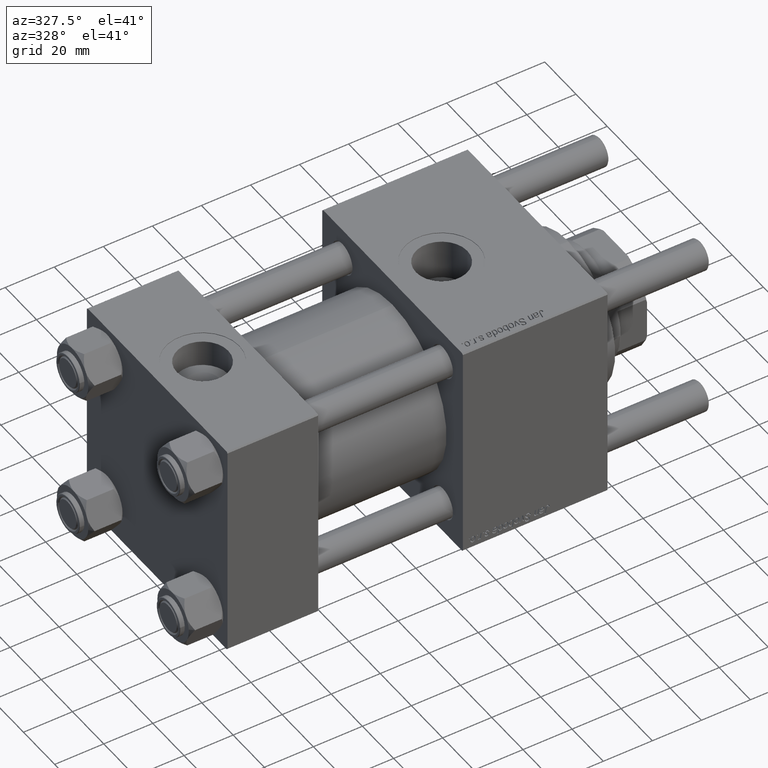
[diagram: clean part render]
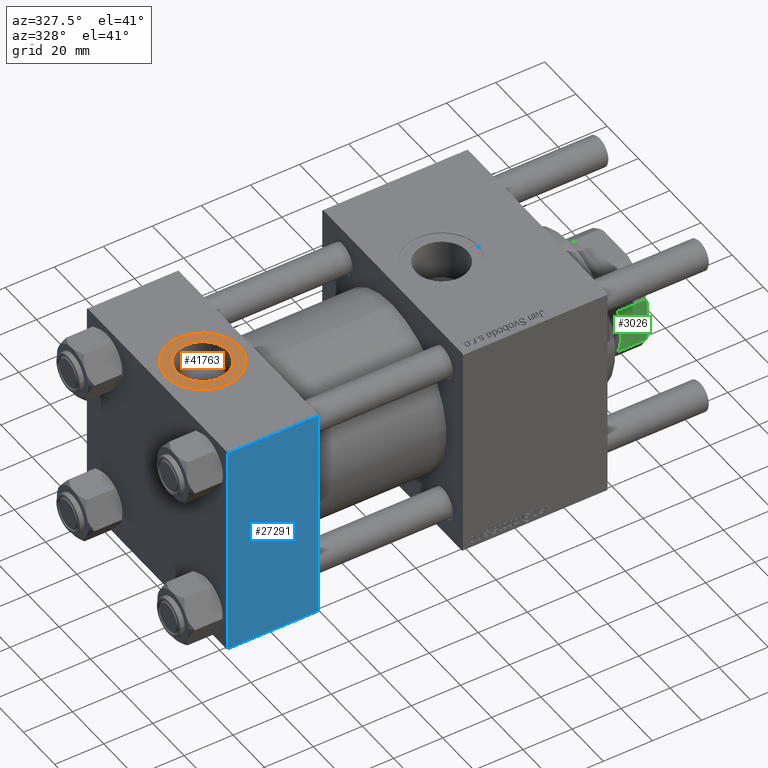
[diagram: same view with three faces highlighted in distinct colors, each labeled with its STEP entity id]
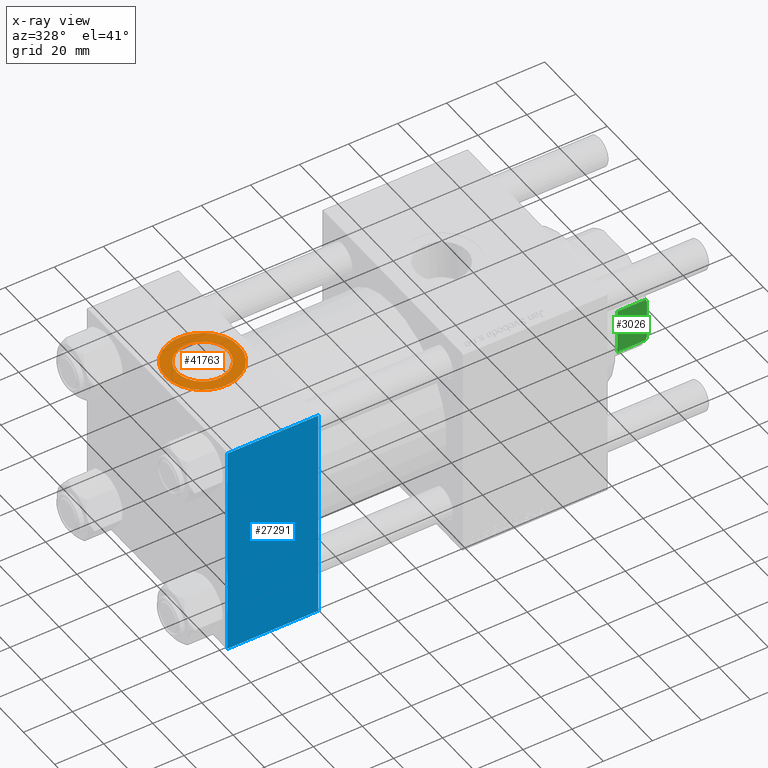
[diagram: x-ray of the same camera — body ghosted, the three highlighted faces saturated]
A machine part, auxiliary view with three faces highlighted in distinct colors.
The next image is the same camera in x-ray (body ghosted, the three faces saturated) — at least one of them is partly hidden behind the body in this view.
Their STEP definitions:

[orange] entity #41763 — the highlighted planar face has unit normal (0, 0, 1).
#342 = ORIENTED_EDGE ( 'NONE', *, *, #10020, .F. ) ;
#1441 = ORIENTED_EDGE ( 'NONE', *, *, #36402, .T. ) ;
#1709 = DIRECTION ( 'NONE',  ( 1.000000000000000000, 0.000000000000000000, 0.000000000000000000 ) ) ;
#1884 = EDGE_LOOP ( 'NONE', ( #1441, #10116 ) ) ;
#4215 = VERTEX_POINT ( 'NONE', #52882 ) ;
#5229 = EDGE_LOOP ( 'NONE', ( #43252, #342 ) ) ;
#6156 = FACE_OUTER_BOUND ( 'NONE', #1884, .T. ) ;
#8341 = CIRCLE ( 'NONE', #44056, 15.00000000000000355 ) ;
#10020 = EDGE_CURVE ( 'NONE', #4215, #42770, #20523, .T. ) ;
#10116 = ORIENTED_EDGE ( 'NONE', *, *, #46093, .T. ) ;
#13223 = DIRECTION ( 'NONE',  ( 1.000000000000000000, 0.000000000000000000, 0.000000000000000000 ) ) ;
#13505 = VERTEX_POINT ( 'NONE', #47375 ) ;
#13994 = AXIS2_PLACEMENT_3D ( 'NONE', #20961, #17518, #13223 ) ;
#15042 = CARTESIAN_POINT ( 'NONE',  ( 18.50000000000000000, -8.673617379884038628E-15, 44.80000000000000426 ) ) ;
#17518 = DIRECTION ( 'NONE',  ( 0.000000000000000000, 0.000000000000000000, 1.000000000000000000 ) ) ;
#19461 = CARTESIAN_POINT ( 'NONE',  ( 18.50000000000000000, -8.673617379884038628E-15, 44.80000000000000426 ) ) ;
#20523 = CIRCLE ( 'NONE', #27871, 10.48000000000000043 ) ;
#20961 = CARTESIAN_POINT ( 'NONE',  ( 18.50000000000000000, -8.673617379884038628E-15, 44.80000000000000426 ) ) ;
#21096 = CARTESIAN_POINT ( 'NONE',  ( 28.98000000000000043, -8.673617379884038628E-15, 44.80000000000000426 ) ) ;
#25695 = CARTESIAN_POINT ( 'NONE',  ( 18.50000000000000000, -8.673617379884038628E-15, 44.80000000000000426 ) ) ;
#27871 = AXIS2_PLACEMENT_3D ( 'NONE', #19461, #36951, #1709 ) ;
#28895 = CARTESIAN_POINT ( 'NONE',  ( 18.50000000000000000, -8.673617379884038628E-15, 44.80000000000000426 ) ) ;
#29916 = DIRECTION ( 'NONE',  ( 0.000000000000000000, 0.000000000000000000, 1.000000000000000000 ) ) ;
#34867 = DIRECTION ( 'NONE',  ( 0.000000000000000000, 0.000000000000000000, 1.000000000000000000 ) ) ;
#36402 = EDGE_CURVE ( 'NONE', #39110, #13505, #8341, .T. ) ;
#36951 = DIRECTION ( 'NONE',  ( 0.000000000000000000, 0.000000000000000000, 1.000000000000000000 ) ) ;
#37739 = CIRCLE ( 'NONE', #13994, 15.00000000000000355 ) ;
#38354 = DIRECTION ( 'NONE',  ( 1.000000000000000000, 0.000000000000000000, 0.000000000000000000 ) ) ;
#39110 = VERTEX_POINT ( 'NONE', #46484 ) ;
#41763 = ADVANCED_FACE ( 'NONE', ( #45416, #6156 ), #54291, .T. ) ;
#42649 = DIRECTION ( 'NONE',  ( 0.000000000000000000, 0.000000000000000000, 1.000000000000000000 ) ) ;
#42770 = VERTEX_POINT ( 'NONE', #21096 ) ;
#43252 = ORIENTED_EDGE ( 'NONE', *, *, #47688, .F. ) ;
#43283 = CIRCLE ( 'NONE', #56105, 10.48000000000000043 ) ;
#44056 = AXIS2_PLACEMENT_3D ( 'NONE', #25695, #34867, #52911 ) ;
#45082 = AXIS2_PLACEMENT_3D ( 'NONE', #15042, #29916, #51114 ) ;
#45416 = FACE_BOUND ( 'NONE', #5229, .T. ) ;
#46093 = EDGE_CURVE ( 'NONE', #13505, #39110, #37739, .T. ) ;
#46484 = CARTESIAN_POINT ( 'NONE',  ( 33.50000000000000000, -8.673617379884038628E-15, 44.80000000000000426 ) ) ;
#47375 = CARTESIAN_POINT ( 'NONE',  ( 3.499999999999997780, -6.836647181163008250E-15, 44.80000000000000426 ) ) ;
#47688 = EDGE_CURVE ( 'NONE', #42770, #4215, #43283, .T. ) ;
#51114 = DIRECTION ( 'NONE',  ( 1.000000000000000000, 0.000000000000000000, -0.000000000000000000 ) ) ;
#52882 = CARTESIAN_POINT ( 'NONE',  ( 8.019999999999999574, -7.390187534377611561E-15, 44.80000000000000426 ) ) ;
#52911 = DIRECTION ( 'NONE',  ( 1.000000000000000000, 0.000000000000000000, 0.000000000000000000 ) ) ;
#54291 = PLANE ( 'NONE',  #45082 ) ;
#56105 = AXIS2_PLACEMENT_3D ( 'NONE', #28895, #42649, #38354 ) ;

[blue] entity #27291 — the highlighted planar face has unit normal (0, 1, 0).
#65 = CARTESIAN_POINT ( 'NONE',  ( 0.000000000000000000, -45.00000000000000000, -44.49999999999995737 ) ) ;
#977 = ORIENTED_EDGE ( 'NONE', *, *, #52390, .T. ) ;
#1969 = LINE ( 'NONE', #28332, #23312 ) ;
#5028 = VECTOR ( 'NONE', #30031, 1000.000000000000000 ) ;
#6844 = LINE ( 'NONE', #29473, #45933 ) ;
#7181 = FACE_OUTER_BOUND ( 'NONE', #15601, .T. ) ;
#8285 = VERTEX_POINT ( 'NONE', #12731 ) ;
#9289 = VERTEX_POINT ( 'NONE', #65 ) ;
#10574 = DIRECTION ( 'NONE',  ( 0.000000000000000000, 7.709882115452476934E-17, -1.000000000000000000 ) ) ;
#10939 = CARTESIAN_POINT ( 'NONE',  ( 37.00000000000000000, -45.00000000000000000, -44.49999999999995737 ) ) ;
#12731 = CARTESIAN_POINT ( 'NONE',  ( 0.000000000000000000, -45.00000000000000711, 44.49999999999997158 ) ) ;
#14456 = DIRECTION ( 'NONE',  ( -1.000000000000000000, 0.000000000000000000, 0.000000000000000000 ) ) ;
#14728 = LINE ( 'NONE', #53696, #19949 ) ;
#15601 = EDGE_LOOP ( 'NONE', ( #977, #18096, #37842, #31303 ) ) ;
#18096 = ORIENTED_EDGE ( 'NONE', *, *, #43983, .T. ) ;
#19808 = DIRECTION ( 'NONE',  ( 0.000000000000000000, -7.709882115452478166E-17, 1.000000000000000000 ) ) ;
#19949 = VECTOR ( 'NONE', #14456, 1000.000000000000000 ) ;
#20365 = CARTESIAN_POINT ( 'NONE',  ( 37.00000000000000000, -45.00000000000000711, 45.00000000000000000 ) ) ;
#23312 = VECTOR ( 'NONE', #10574, 1000.000000000000000 ) ;
#24323 = DIRECTION ( 'NONE',  ( 1.000000000000000000, 0.000000000000000000, 0.000000000000000000 ) ) ;
#25723 = EDGE_CURVE ( 'NONE', #37937, #8285, #14728, .T. ) ;
#27291 = ADVANCED_FACE ( 'NONE', ( #7181 ), #54765, .F. ) ;
#28332 = CARTESIAN_POINT ( 'NONE',  ( 0.000000000000000000, -45.00000000000000711, 45.00000000000000000 ) ) ;
#29473 = CARTESIAN_POINT ( 'NONE',  ( 37.00000000000000000, -45.00000000000000000, -44.49999999999998579 ) ) ;
#30031 = DIRECTION ( 'NONE',  ( 0.000000000000000000, 7.709882115452476934E-17, -1.000000000000000000 ) ) ;
#31303 = ORIENTED_EDGE ( 'NONE', *, *, #25723, .T. ) ;
#33549 = DIRECTION ( 'NONE',  ( -0.000000000000000000, 1.000000000000000000, 7.709882115452478166E-17 ) ) ;
#34639 = AXIS2_PLACEMENT_3D ( 'NONE', #20365, #33549, #19808 ) ;
#36355 = VERTEX_POINT ( 'NONE', #10939 ) ;
#37842 = ORIENTED_EDGE ( 'NONE', *, *, #53358, .F. ) ;
#37937 = VERTEX_POINT ( 'NONE', #42785 ) ;
#42785 = CARTESIAN_POINT ( 'NONE',  ( 37.00000000000000000, -45.00000000000000711, 44.49999999999997158 ) ) ;
#43983 = EDGE_CURVE ( 'NONE', #9289, #36355, #6844, .T. ) ;
#45933 = VECTOR ( 'NONE', #24323, 1000.000000000000000 ) ;
#47227 = CARTESIAN_POINT ( 'NONE',  ( 37.00000000000000000, -45.00000000000000711, 45.00000000000000000 ) ) ;
#51227 = LINE ( 'NONE', #47227, #5028 ) ;
#52390 = EDGE_CURVE ( 'NONE', #8285, #9289, #1969, .T. ) ;
#53358 = EDGE_CURVE ( 'NONE', #37937, #36355, #51227, .T. ) ;
#53696 = CARTESIAN_POINT ( 'NONE',  ( 37.00000000000000000, -45.00000000000000711, 44.49999999999997158 ) ) ;
#54765 = PLANE ( 'NONE',  #34639 ) ;

[green] entity #3026 — the highlighted planar face has unit normal (0, 1, 0).
#3026 = ADVANCED_FACE ( 'NONE', ( #24942 ), #54769, .F. ) ;
#3088 = VERTEX_POINT ( 'NONE', #43577 ) ;
#3627 = EDGE_LOOP ( 'NONE', ( #26200, #17372, #49762, #40819, #42470, #42910 ) ) ;
#5920 = VECTOR ( 'NONE', #9876, 1000.000000000000000 ) ;
#7573 = CARTESIAN_POINT ( 'NONE',  ( 19.99999999999999289, -9.165151389911693869, 149.5000000000000000 ) ) ;
#7770 = B_SPLINE_CURVE_WITH_KNOTS ( 'NONE', 3,
 ( #36795, #48363, #49974, #23890 ),
 .UNSPECIFIED., .F., .F.,
 ( 4, 4 ),
 ( 1.734723475976807094E-18, 0.001369799431184337470 ),
 .UNSPECIFIED. ) ;
#8435 = AXIS2_PLACEMENT_3D ( 'NONE', #55889, #51591, #51031 ) ;
#9876 = DIRECTION ( 'NONE',  ( -1.734723475976807094E-16, 1.000000000000000000, -0.000000000000000000 ) ) ;
#12095 = CARTESIAN_POINT ( 'NONE',  ( 19.99999999999999645, 9.165151389911683211, -0.001000000000001000089 ) ) ;
#14870 = EDGE_CURVE ( 'NONE', #18285, #29492, #32373, .T. ) ;
#16038 = CARTESIAN_POINT ( 'NONE',  ( 20.00000000000000000, 7.889866919029812742, 150.0000000000000284 ) ) ;
#17322 = CARTESIAN_POINT ( 'NONE',  ( 19.99999999999999645, 9.165151389911683211, 149.5000000000000568 ) ) ;
#17372 = ORIENTED_EDGE ( 'NONE', *, *, #24619, .T. ) ;
#17527 = EDGE_CURVE ( 'NONE', #37174, #3088, #51633, .T. ) ;
#18285 = VERTEX_POINT ( 'NONE', #47806 ) ;
#19736 = CARTESIAN_POINT ( 'NONE',  ( 19.99999999999999289, -9.165151389911693869, -0.001000000000001000089 ) ) ;
#20014 = DIRECTION ( 'NONE',  ( -0.000000000000000000, -0.000000000000000000, 1.000000000000000000 ) ) ;
#21212 = B_SPLINE_CURVE_WITH_KNOTS ( 'NONE', 3,
 ( #17322, #34798, #48274, #34230 ),
 .UNSPECIFIED., .F., .F.,
 ( 4, 4 ),
 ( 0.000000000000000000, 0.001369799431184152939 ),
 .UNSPECIFIED. ) ;
#23436 = VECTOR ( 'NONE', #20014, 1000.000000000000000 ) ;
#23890 = CARTESIAN_POINT ( 'NONE',  ( 19.99999999999999289, -9.165151389911693869, 149.5000000000000000 ) ) ;
#24411 = VECTOR ( 'NONE', #30723, 1000.000000000000000 ) ;
#24619 = EDGE_CURVE ( 'NONE', #3088, #55393, #21212, .T. ) ;
#24942 = FACE_OUTER_BOUND ( 'NONE', #3627, .T. ) ;
#26200 = ORIENTED_EDGE ( 'NONE', *, *, #17527, .T. ) ;
#26945 = LINE ( 'NONE', #40137, #42254 ) ;
#28254 = VERTEX_POINT ( 'NONE', #37088 ) ;
#29492 = VERTEX_POINT ( 'NONE', #7573 ) ;
#30374 = CARTESIAN_POINT ( 'NONE',  ( 19.99999999999999645, 9.165151389911683211, 138.0000000000000568 ) ) ;
#30723 = DIRECTION ( 'NONE',  ( -0.000000000000000000, -0.000000000000000000, 1.000000000000000000 ) ) ;
#31656 = CARTESIAN_POINT ( 'NONE',  ( 19.99999999999999645, 20.00000000000000000, 138.0000000000000000 ) ) ;
#32373 = LINE ( 'NONE', #19736, #23436 ) ;
#33932 = EDGE_CURVE ( 'NONE', #28254, #55393, #26945, .T. ) ;
#34230 = CARTESIAN_POINT ( 'NONE',  ( 20.00000000000000000, 7.889866919029812742, 150.0000000000000284 ) ) ;
#34798 = CARTESIAN_POINT ( 'NONE',  ( 19.99999999999999645, 8.743570658524381756, 149.6756296011925258 ) ) ;
#36113 = DIRECTION ( 'NONE',  ( -1.734723475976807094E-16, 1.000000000000000000, -0.000000000000000000 ) ) ;
#36236 = LINE ( 'NONE', #31656, #5920 ) ;
#36795 = CARTESIAN_POINT ( 'NONE',  ( 20.00000000000000000, -7.889866919029643100, 150.0000000000000284 ) ) ;
#37088 = CARTESIAN_POINT ( 'NONE',  ( 20.00000000000000000, -7.889866919029643100, 150.0000000000000284 ) ) ;
#37174 = VERTEX_POINT ( 'NONE', #30374 ) ;
#40137 = CARTESIAN_POINT ( 'NONE',  ( 19.99999999999999645, 20.00000000000000000, 150.0000000000000284 ) ) ;
#40819 = ORIENTED_EDGE ( 'NONE', *, *, #50192, .T. ) ;
#42254 = VECTOR ( 'NONE', #36113, 1000.000000000000000 ) ;
#42470 = ORIENTED_EDGE ( 'NONE', *, *, #14870, .F. ) ;
#42910 = ORIENTED_EDGE ( 'NONE', *, *, #53810, .T. ) ;
#43577 = CARTESIAN_POINT ( 'NONE',  ( 19.99999999999999645, 9.165151389911683211, 149.5000000000000568 ) ) ;
#47806 = CARTESIAN_POINT ( 'NONE',  ( 19.99999999999999289, -9.165151389911693869, 138.0000000000000568 ) ) ;
#48274 = CARTESIAN_POINT ( 'NONE',  ( 20.00000000000000000, 8.318618722654454345, 149.8426607129352703 ) ) ;
#48363 = CARTESIAN_POINT ( 'NONE',  ( 20.00000000000000000, -8.318618722654344211, 149.8426607129352419 ) ) ;
#49762 = ORIENTED_EDGE ( 'NONE', *, *, #33932, .F. ) ;
#49974 = CARTESIAN_POINT ( 'NONE',  ( 20.00000000000000000, -8.743570658524330241, 149.6756296011924974 ) ) ;
#50192 = EDGE_CURVE ( 'NONE', #28254, #29492, #7770, .T. ) ;
#51031 = DIRECTION ( 'NONE',  ( 1.734723475976806848E-16, -1.000000000000000000, 0.000000000000000000 ) ) ;
#51591 = DIRECTION ( 'NONE',  ( -1.000000000000000000, -1.734723475976806848E-16, 0.000000000000000000 ) ) ;
#51633 = LINE ( 'NONE', #12095, #24411 ) ;
#53810 = EDGE_CURVE ( 'NONE', #18285, #37174, #36236, .T. ) ;
#54769 = PLANE ( 'NONE',  #8435 ) ;
#55393 = VERTEX_POINT ( 'NONE', #16038 ) ;
#55889 = CARTESIAN_POINT ( 'NONE',  ( 19.99999999999999645, 20.00000000000000000, 150.0000000000000284 ) ) ;